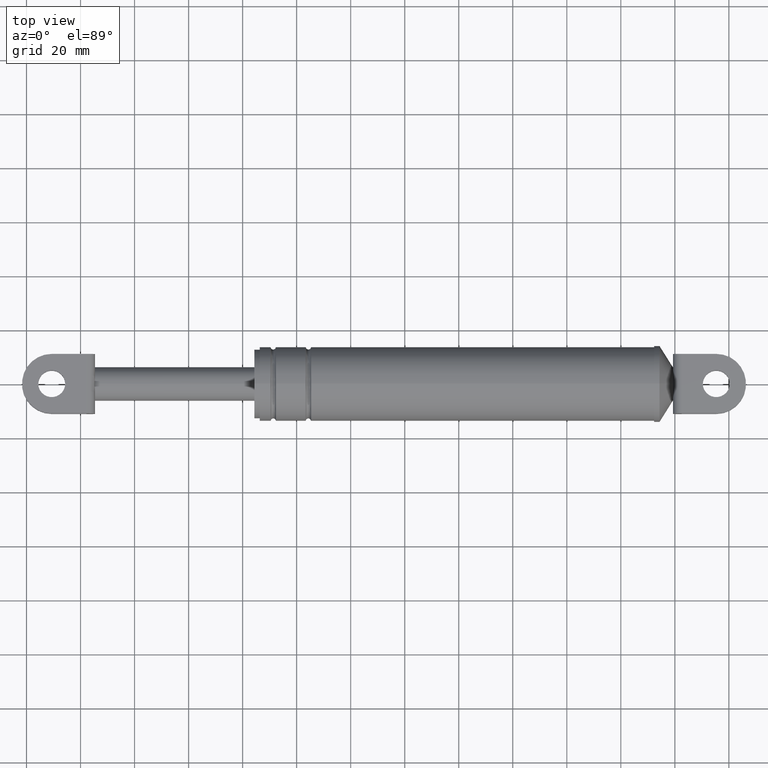
[diagram: clean part render]
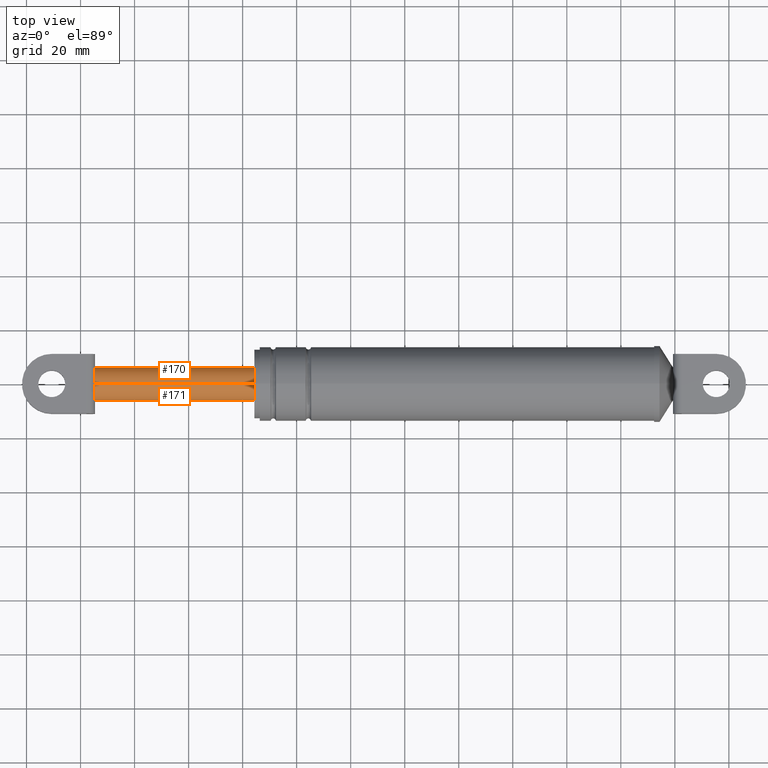
[diagram: same view with one multi-face feature highlighted, each face labeled with its STEP entity id]
A machine part, top view. The highlighted faces form ONE feature: a constant-radius fillet chain: 2 tangent blend faces with common blend radius 6.25 mm. The faces share edges in the B-rep.
Their STEP definitions:
[1] entity #171 (Cylinder):
#171=ADVANCED_FACE('',(#777),#776,.T.);
#776=CYLINDRICAL_SURFACE('',#1947,6.25000000000E+000);
#777=FACE_OUTER_BOUND('',#1948,.T.);
#1944=CARTESIAN_POINT('',(9.94317970286E+001,-1.23111126262E-013,1.19820542859E+002));
#1945=DIRECTION('',(-1.00000000000E+000,-3.21554935538E-015,-4.77479706214E-030));
#1946=DIRECTION('',(5.85643873688E-029,-1.96977802020E-014,1.00000000000E+000));
#1947=AXIS2_PLACEMENT_3D('',#1944,#1945,#1946);
#1948=EDGE_LOOP('',(#2259,#2260,#2261,#2262,#2263,#2264));
#2259=ORIENTED_EDGE('',*,*,#2429,.F.);
#2260=ORIENTED_EDGE('',*,*,#2431,.T.);
#2261=ORIENTED_EDGE('',*,*,#2398,.F.);
#2262=ORIENTED_EDGE('',*,*,#2421,.F.);
#2263=ORIENTED_EDGE('',*,*,#2410,.F.);
#2264=ORIENTED_EDGE('',*,*,#2432,.F.);
#2398=EDGE_CURVE('',#3212,#3219,#3220,.T.);
#2410=EDGE_CURVE('',#3292,#3278,#3299,.T.);
#2421=EDGE_CURVE('',#3278,#3212,#3369,.T.);
#2429=EDGE_CURVE('',#3421,#3422,#3423,.T.);
#2431=EDGE_CURVE('',#3421,#3219,#3435,.T.);
#2432=EDGE_CURVE('',#3422,#3292,#3441,.T.);
#3212=VERTEX_POINT('',#3958);
#3219=VERTEX_POINT('',#3963);
#3220=CIRCLE('',#3967,6.25000000000E+000);
#3278=VERTEX_POINT('',#4006);
#3292=VERTEX_POINT('',#4022);
#3299=CIRCLE('',#4030,6.25000000000E+000);
#3369=CIRCLE('',#4075,6.25000000000E+000);
#3421=VERTEX_POINT('',#4107);
#3422=VERTEX_POINT('',#4108);
#3423=CIRCLE('',#4112,6.25000000000E+000);
#3435=(BOUNDED_CURVE() B_SPLINE_CURVE(1,(#4117,#4118),.UNSPECIFIED.,.F.,.F.) B_SPLINE_CURVE_WITH_KNOTS((2,2),(8.33333332085E-002,9.16666666222E-001),.UNSPECIFIED.) CURVE() GEOMETRIC_REPRESENTATION_ITEM() RATIONAL_B_SPLINE_CURVE((1.00000000000E+000,1.00000000000E+000)) REPRESENTATION_ITEM('') );
#3441=(BOUNDED_CURVE() B_SPLINE_CURVE(1,(#4119,#4120),.UNSPECIFIED.,.F.,.F.) B_SPLINE_CURVE_WITH_KNOTS((2,2),(8.33333333333E-002,9.16666666667E-001),.UNSPECIFIED.) CURVE() GEOMETRIC_REPRESENTATION_ITEM() RATIONAL_B_SPLINE_CURVE((7.50000000000E-001,7.50000000000E-001)) REPRESENTATION_ITEM('') );
#3958=CARTESIAN_POINT('',(1.05331797029E+002,-2.96859107996E+000,1.25320539859E+002));
#3963=CARTESIAN_POINT('',(1.05331797029E+002,-1.20471039814E-013,1.26070542859E+002));
#3964=CARTESIAN_POINT('',(1.05331797029E+002,-9.91429160990E-013,1.19820542859E+002));
#3965=DIRECTION('',(-1.00000000000E+000,-7.65803593666E-016,-4.13337992213E-016));
#3966=DIRECTION('',(-0.00000000000E+000,4.74974572793E-001,-8.79999520000E-001));
#3967=AXIS2_PLACEMENT_3D('',#3964,#3965,#3966);
#4006=CARTESIAN_POINT('',(1.05331797029E+002,-2.96859107996E+000,1.14320545859E+002));
#4022=CARTESIAN_POINT('',(1.05331797029E+002,-2.57648443593E-008,1.13570542859E+002));
#4027=CARTESIAN_POINT('',(1.05331797029E+002,2.59792187762E-014,1.19820542859E+002));
#4028=DIRECTION('',(-1.00000000000E+000,1.78687505179E-015,9.64455315112E-016));
#4029=DIRECTION('',(-0.00000000000E+000,-4.74974572793E-001,8.79999520000E-001));
#4030=AXIS2_PLACEMENT_3D('',#4027,#4028,#4029);
#4072=CARTESIAN_POINT('',(1.05331797029E+002,1.86517468137E-014,1.19820542859E+002));
#4073=DIRECTION('',(-1.00000000000E+000,-0.00000000000E+000,0.00000000000E+000));
#4074=DIRECTION('',(-0.00000000000E+000,4.74974572793E-001,8.79999520000E-001));
#4075=AXIS2_PLACEMENT_3D('',#4072,#4073,#4074);
#4107=CARTESIAN_POINT('',(1.64331797029E+002,8.55780269022E-014,1.26070542859E+002));
#4108=CARTESIAN_POINT('',(1.64331797029E+002,8.64493661841E-014,1.13570542859E+002));
#4109=CARTESIAN_POINT('',(1.64331797029E+002,8.55780269022E-014,1.19820542859E+002));
#4110=DIRECTION('',(1.00000000000E+000,0.00000000000E+000,-0.00000000000E+000));
#4111=DIRECTION('',(0.00000000000E+000,-1.22460635382E-016,1.00000000000E+000));
#4112=AXIS2_PLACEMENT_3D('',#4109,#4110,#4111);
#4117=CARTESIAN_POINT('',(1.64331797037E+002,-3.75330993316E-014,1.26070542859E+002));
#4118=CARTESIAN_POINT('',(1.05331797060E+002,-2.27250511226E-013,1.26070542859E+002));
#4119=CARTESIAN_POINT('',(1.64331797029E+002,2.08401197534E-013,1.13570542859E+002));
#4120=CARTESIAN_POINT('',(1.05331797029E+002,1.86764184365E-014,1.13570542859E+002));
[2] entity #170 (Cylinder):
#170=ADVANCED_FACE('',(#767),#766,.T.);
#766=CYLINDRICAL_SURFACE('',#1942,6.25000000000E+000);
#767=FACE_OUTER_BOUND('',#1943,.T.);
#1939=CARTESIAN_POINT('',(9.94317970286E+001,-1.23111126262E-013,1.19820542859E+002));
#1940=DIRECTION('',(-1.00000000000E+000,-3.21554935538E-015,-4.77479706214E-030));
#1941=DIRECTION('',(5.85643873688E-029,-1.96977802020E-014,1.00000000000E+000));
#1942=AXIS2_PLACEMENT_3D('',#1939,#1940,#1941);
#1943=EDGE_LOOP('',(#2253,#2254,#2255,#2256,#2257,#2258));
#2253=ORIENTED_EDGE('',*,*,#2409,.F.);
#2254=ORIENTED_EDGE('',*,*,#2416,.F.);
#2255=ORIENTED_EDGE('',*,*,#2399,.F.);
#2256=ORIENTED_EDGE('',*,*,#2431,.F.);
#2257=ORIENTED_EDGE('',*,*,#2430,.F.);
#2258=ORIENTED_EDGE('',*,*,#2432,.T.);
#2399=EDGE_CURVE('',#3219,#3226,#3227,.T.);
#2409=EDGE_CURVE('',#3258,#3292,#3293,.T.);
#2416=EDGE_CURVE('',#3226,#3258,#3337,.T.);
#2430=EDGE_CURVE('',#3422,#3421,#3429,.T.);
#2431=EDGE_CURVE('',#3421,#3219,#3435,.T.);
#2432=EDGE_CURVE('',#3422,#3292,#3441,.T.);
#3219=VERTEX_POINT('',#3963);
#3226=VERTEX_POINT('',#3968);
#3227=CIRCLE('',#3972,6.25000000000E+000);
#3258=VERTEX_POINT('',#3994);
#3292=VERTEX_POINT('',#4022);
#3293=CIRCLE('',#4026,6.25000000000E+000);
#3337=CIRCLE('',#4054,6.25000000000E+000);
#3421=VERTEX_POINT('',#4107);
#3422=VERTEX_POINT('',#4108);
#3429=CIRCLE('',#4116,6.25000000000E+000);
#3435=(BOUNDED_CURVE() B_SPLINE_CURVE(1,(#4117,#4118),.UNSPECIFIED.,.F.,.F.) B_SPLINE_CURVE_WITH_KNOTS((2,2),(8.33333332085E-002,9.16666666222E-001),.UNSPECIFIED.) CURVE() GEOMETRIC_REPRESENTATION_ITEM() RATIONAL_B_SPLINE_CURVE((1.00000000000E+000,1.00000000000E+000)) REPRESENTATION_ITEM('') );
#3441=(BOUNDED_CURVE() B_SPLINE_CURVE(1,(#4119,#4120),.UNSPECIFIED.,.F.,.F.) B_SPLINE_CURVE_WITH_KNOTS((2,2),(8.33333333333E-002,9.16666666667E-001),.UNSPECIFIED.) CURVE() GEOMETRIC_REPRESENTATION_ITEM() RATIONAL_B_SPLINE_CURVE((7.50000000000E-001,7.50000000000E-001)) REPRESENTATION_ITEM('') );
#3963=CARTESIAN_POINT('',(1.05331797029E+002,-1.20471039814E-013,1.26070542859E+002));
#3968=CARTESIAN_POINT('',(1.05331797029E+002,2.96859107996E+000,1.25320539859E+002));
#3969=CARTESIAN_POINT('',(1.05331797029E+002,-9.91429160990E-013,1.19820542859E+002));
#3970=DIRECTION('',(-1.00000000000E+000,-7.65803593666E-016,-4.13337992213E-016));
#3971=DIRECTION('',(-0.00000000000E+000,4.74974572793E-001,-8.79999520000E-001));
#3972=AXIS2_PLACEMENT_3D('',#3969,#3970,#3971);
#3994=CARTESIAN_POINT('',(1.05331797029E+002,2.96859107996E+000,1.14320545859E+002));
#4022=CARTESIAN_POINT('',(1.05331797029E+002,-2.57648443593E-008,1.13570542859E+002));
#4023=CARTESIAN_POINT('',(1.05331797029E+002,2.59792187762E-014,1.19820542859E+002));
#4024=DIRECTION('',(-1.00000000000E+000,1.78687505179E-015,9.64455315112E-016));
#4025=DIRECTION('',(-0.00000000000E+000,-4.74974572793E-001,8.79999520000E-001));
#4026=AXIS2_PLACEMENT_3D('',#4023,#4024,#4025);
#4051=CARTESIAN_POINT('',(1.05331797029E+002,5.32907051820E-015,1.19820542859E+002));
#4052=DIRECTION('',(-1.00000000000E+000,0.00000000000E+000,0.00000000000E+000));
#4053=DIRECTION('',(-0.00000000000E+000,-4.74974572793E-001,-8.79999520000E-001));
#4054=AXIS2_PLACEMENT_3D('',#4051,#4052,#4053);
#4107=CARTESIAN_POINT('',(1.64331797029E+002,8.55780269022E-014,1.26070542859E+002));
#4108=CARTESIAN_POINT('',(1.64331797029E+002,8.64493661841E-014,1.13570542859E+002));
#4113=CARTESIAN_POINT('',(1.64331797029E+002,8.55780269022E-014,1.19820542859E+002));
#4114=DIRECTION('',(1.00000000000E+000,0.00000000000E+000,-0.00000000000E+000));
#4115=DIRECTION('',(0.00000000000E+000,-1.22460635382E-016,1.00000000000E+000));
#4116=AXIS2_PLACEMENT_3D('',#4113,#4114,#4115);
#4117=CARTESIAN_POINT('',(1.64331797037E+002,-3.75330993316E-014,1.26070542859E+002));
#4118=CARTESIAN_POINT('',(1.05331797060E+002,-2.27250511226E-013,1.26070542859E+002));
#4119=CARTESIAN_POINT('',(1.64331797029E+002,2.08401197534E-013,1.13570542859E+002));
#4120=CARTESIAN_POINT('',(1.05331797029E+002,1.86764184365E-014,1.13570542859E+002));